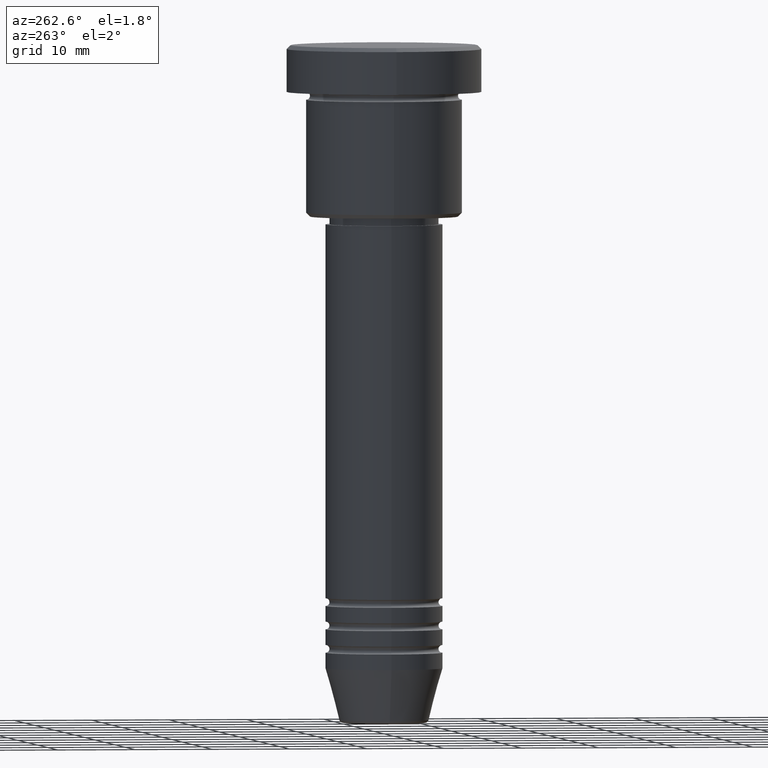
[diagram: clean part render]
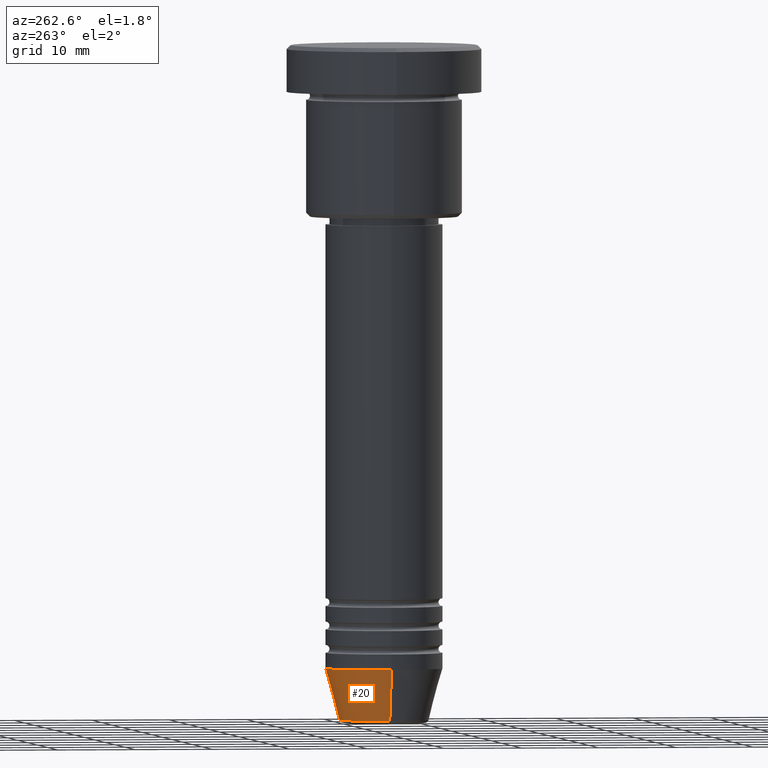
[diagram: same view with one face highlighted and labeled with its STEP entity id]
A machine part, auxiliary view. The second image highlights one B-rep face of the part: STEP entity #20.
In plain terms, the highlighted conical surface has half-angle 15 deg.
Its self-contained STEP definition (entity closure, byte-faithful):
#20 = ADVANCED_FACE ( 'NONE', ( #415 ), #111, .T. ) ;
#25 = ORIENTED_EDGE ( 'NONE', *, *, #344, .F. ) ;
#111 = CONICAL_SURFACE ( 'NONE', #130, 7.500000000000000000, 0.2617993877991500740 ) ;
#118 = DIRECTION ( 'NONE',  ( 1.000000000000000000, 0.000000000000000000, 0.000000000000000000 ) ) ;
#120 = DIRECTION ( 'NONE',  ( -0.000000000000000000, -0.000000000000000000, 1.000000000000000000 ) ) ;
#130 = AXIS2_PLACEMENT_3D ( 'NONE', #492, #120, #498 ) ;
#136 = AXIS2_PLACEMENT_3D ( 'NONE', #939, #558, #118 ) ;
#199 = CARTESIAN_POINT ( 'NONE',  ( -7.500000000000000000, 9.184850993605147944E-16, -79.99999999999998579 ) ) ;
#234 = DIRECTION ( 'NONE',  ( -0.000000000000000000, -0.000000000000000000, 1.000000000000000000 ) ) ;
#251 = CIRCLE ( 'NONE', #559, 5.723655072137191269 ) ;
#344 = EDGE_CURVE ( 'NONE', #918, #364, #848, .T. ) ;
#364 = VERTEX_POINT ( 'NONE', #468 ) ;
#415 = FACE_OUTER_BOUND ( 'NONE', #749, .T. ) ;
#468 = CARTESIAN_POINT ( 'NONE',  ( 7.500000000000000000, 0.000000000000000000, -79.99999999999998579 ) ) ;
#475 = ORIENTED_EDGE ( 'NONE', *, *, #991, .F. ) ;
#492 = CARTESIAN_POINT ( 'NONE',  ( 0.000000000000000000, 0.000000000000000000, -79.99999999999998579 ) ) ;
#498 = DIRECTION ( 'NONE',  ( 1.000000000000000000, 0.000000000000000000, 0.000000000000000000 ) ) ;
#558 = DIRECTION ( 'NONE',  ( -0.000000000000000000, -0.000000000000000000, 1.000000000000000000 ) ) ;
#559 = AXIS2_PLACEMENT_3D ( 'NONE', #1056, #234, #800 ) ;
#575 = VECTOR ( 'NONE', #930, 1000.000000000000000 ) ;
#616 = CARTESIAN_POINT ( 'NONE',  ( -7.500000000000000000, 9.184850993605147944E-16, -79.99999999999998579 ) ) ;
#665 = ORIENTED_EDGE ( 'NONE', *, *, #833, .T. ) ;
#726 = VERTEX_POINT ( 'NONE', #616 ) ;
#749 = EDGE_LOOP ( 'NONE', ( #665, #759, #475, #25 ) ) ;
#759 = ORIENTED_EDGE ( 'NONE', *, *, #911, .T. ) ;
#769 = CARTESIAN_POINT ( 'NONE',  ( -5.723655072137190380, 8.097153428560735915E-16, -86.62940952255125637 ) ) ;
#789 = VECTOR ( 'NONE', #1016, 1000.000000000000000 ) ;
#800 = DIRECTION ( 'NONE',  ( 1.000000000000000000, 0.000000000000000000, 0.000000000000000000 ) ) ;
#833 = EDGE_CURVE ( 'NONE', #918, #1122, #251, .T. ) ;
#848 = LINE ( 'NONE', #940, #575 ) ;
#866 = CIRCLE ( 'NONE', #136, 7.500000000000000000 ) ;
#911 = EDGE_CURVE ( 'NONE', #1122, #726, #1101, .T. ) ;
#918 = VERTEX_POINT ( 'NONE', #1111 ) ;
#930 = DIRECTION ( 'NONE',  ( 0.2588190451025213501, 0.000000000000000000, 0.9659258262890680902 ) ) ;
#939 = CARTESIAN_POINT ( 'NONE',  ( 0.000000000000000000, 0.000000000000000000, -79.99999999999998579 ) ) ;
#940 = CARTESIAN_POINT ( 'NONE',  ( 7.500000000000000000, 0.000000000000000000, -79.99999999999998579 ) ) ;
#991 = EDGE_CURVE ( 'NONE', #364, #726, #866, .T. ) ;
#1016 = DIRECTION ( 'NONE',  ( -0.2588190451025213501, 3.169619151431772337E-17, 0.9659258262890680902 ) ) ;
#1056 = CARTESIAN_POINT ( 'NONE',  ( 0.000000000000000000, 0.000000000000000000, -86.62940952255125637 ) ) ;
#1101 = LINE ( 'NONE', #199, #789 ) ;
#1111 = CARTESIAN_POINT ( 'NONE',  ( 5.723655072137191269, 0.000000000000000000, -86.62940952255125637 ) ) ;
#1122 = VERTEX_POINT ( 'NONE', #769 ) ;